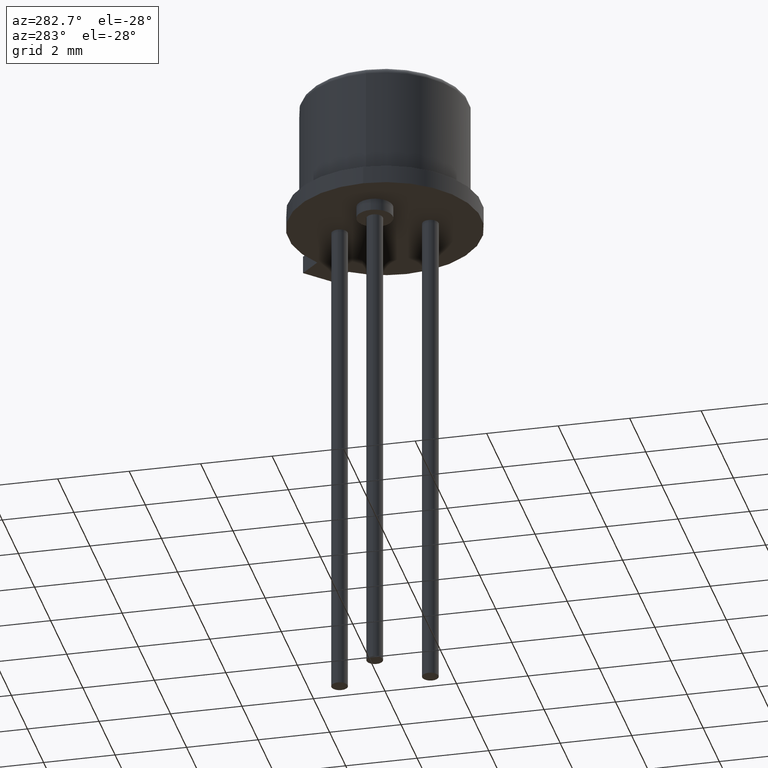
[diagram: clean part render]
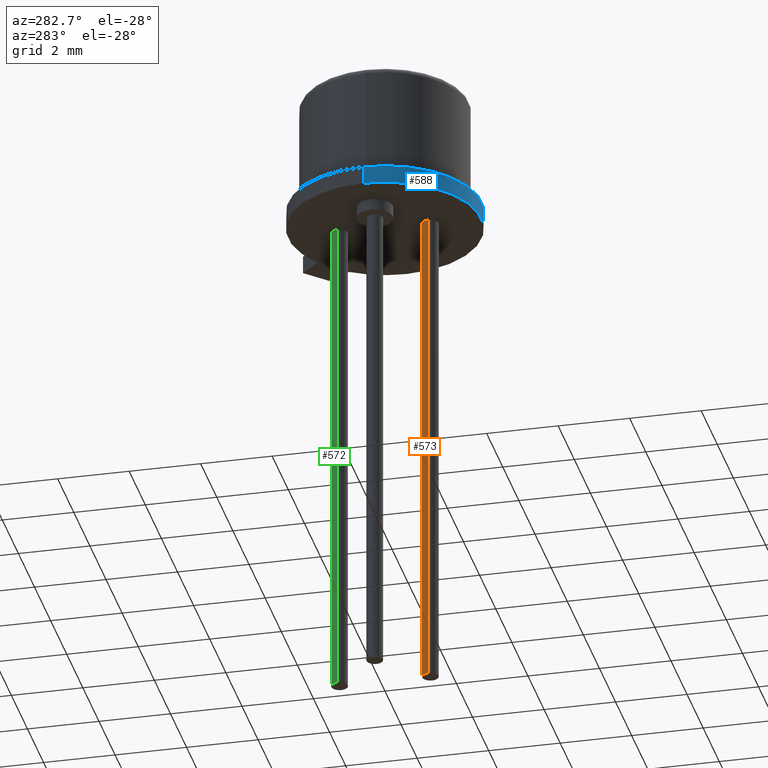
[diagram: same view with three faces highlighted in distinct colors, each labeled with its STEP entity id]
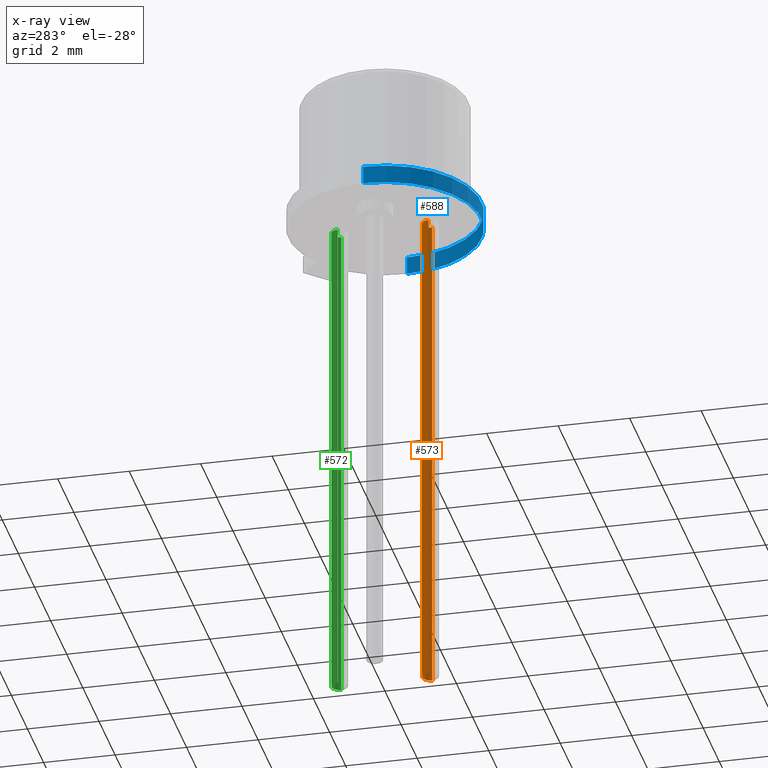
[diagram: x-ray of the same camera — body ghosted, the three highlighted faces saturated]
A machine part, auxiliary view with three faces highlighted in distinct colors.
The next image is the same camera in x-ray (body ghosted, the three faces saturated) — at least one of them is partly hidden behind the body in this view.
Their STEP definitions:

[orange] entity #573 — the highlighted cylindrical surface (edge-blend (fillet) strip) has radius 0.2286 mm, axis along (-0, -0, 1).
#12 = ORIENTED_EDGE ( 'NONE', *, *, #648, .T. ) ;
#13 = ORIENTED_EDGE ( 'NONE', *, *, #647, .F. ) ;
#17 = ORIENTED_EDGE ( 'NONE', *, *, #646, .F. ) ;
#20 = ORIENTED_EDGE ( 'NONE', *, *, #649, .T. ) ;
#165 = VERTEX_POINT ( 'NONE', #1519 ) ;
#166 = VERTEX_POINT ( 'NONE', #1520 ) ;
#171 = VERTEX_POINT ( 'NONE', #1525 ) ;
#172 = VERTEX_POINT ( 'NONE', #1526 ) ;
#215 = EDGE_LOOP ( 'NONE', ( #13, #20, #12, #17 ) ) ;
#456 = CARTESIAN_POINT ( 'NONE',  ( 0.0000000000000000000, -0.05000000000000000300, -0.5510000000000000500 ) ) ;
#457 = DIRECTION ( 'NONE',  ( -0.0000000000000000000, -0.0000000000000000000, 1.000000000000000000 ) ) ;
#466 = DIRECTION ( 'NONE',  ( 1.000000000000000000, 0.0000000000000000000, 0.0000000000000000000 ) ) ;
#515 = DIRECTION ( 'NONE',  ( -0.0000000000000000000, -0.0000000000000000000, -1.000000000000000000 ) ) ;
#529 = DIRECTION ( 'NONE',  ( 1.000000000000000000, 0.0000000000000000000, 0.0000000000000000000 ) ) ;
#573 = ADVANCED_FACE ( 'NONE', ( #771 ), #780, .T. ) ;
#646 = EDGE_CURVE ( 'NONE', #166, #172, #1325, .T. ) ;
#647 = EDGE_CURVE ( 'NONE', #165, #166, #1326, .T. ) ;
#648 = EDGE_CURVE ( 'NONE', #171, #172, #1328, .T. ) ;
#649 = EDGE_CURVE ( 'NONE', #165, #171, #1323, .T. ) ;
#771 = FACE_OUTER_BOUND ( 'NONE', #215, .T. ) ;
#780 = CYLINDRICAL_SURFACE ( 'NONE', #858, 0.008999999999999997600 ) ;
#858 = AXIS2_PLACEMENT_3D ( 'NONE', #456, #457, #466 ) ;
#1207 = DIRECTION ( 'NONE',  ( -0.0000000000000000000, -0.0000000000000000000, 1.000000000000000000 ) ) ;
#1211 = CARTESIAN_POINT ( 'NONE',  ( 0.008999999999999997600, -0.05000000000000000300, -0.5510000000000000500 ) ) ;
#1215 = DIRECTION ( 'NONE',  ( -0.0000000000000000000, -0.0000000000000000000, 1.000000000000000000 ) ) ;
#1216 = CARTESIAN_POINT ( 'NONE',  ( 0.0000000000000000000, -0.05000000000000000300, -0.5510000000000000500 ) ) ;
#1217 = DIRECTION ( 'NONE',  ( 0.0000000000000000000, 0.0000000000000000000, -1.000000000000000000 ) ) ;
#1218 = DIRECTION ( 'NONE',  ( -1.000000000000000000, 0.0000000000000000000, 0.0000000000000000000 ) ) ;
#1219 = CARTESIAN_POINT ( 'NONE',  ( -0.008999999999999997600, -0.05000000000000000300, -0.5510000000000000500 ) ) ;
#1220 = CARTESIAN_POINT ( 'NONE',  ( 0.0000000000000000000, -0.05000000000000000300, 0.0000000000000000000 ) ) ;
#1323 = LINE ( 'NONE', #1219, #1331 ) ;
#1325 = LINE ( 'NONE', #1211, #1327 ) ;
#1326 = CIRCLE ( 'NONE', #1355, 0.008999999999999997600 ) ;
#1327 = VECTOR ( 'NONE', #1207, 39.37007874015748100 ) ;
#1328 = CIRCLE ( 'NONE', #1356, 0.008999999999999997600 ) ;
#1331 = VECTOR ( 'NONE', #1215, 39.37007874015748100 ) ;
#1355 = AXIS2_PLACEMENT_3D ( 'NONE', #1216, #1217, #1218 ) ;
#1356 = AXIS2_PLACEMENT_3D ( 'NONE', #1220, #515, #529 ) ;
#1519 = CARTESIAN_POINT ( 'NONE',  ( -0.008999999999999997600, -0.05000000000000000300, -0.5510000000000000500 ) ) ;
#1520 = CARTESIAN_POINT ( 'NONE',  ( 0.008999999999999997600, -0.05000000000000000300, -0.5510000000000000500 ) ) ;
#1525 = CARTESIAN_POINT ( 'NONE',  ( -0.008999999999999997600, -0.05000000000000000300, 0.0000000000000000000 ) ) ;
#1526 = CARTESIAN_POINT ( 'NONE',  ( 0.008999999999999997600, -0.05000000000000000300, 0.0000000000000000000 ) ) ;

[blue] entity #588 — the highlighted cylindrical surface (partial cylindrical patch) has radius 2.7051 mm, axis along (-0, -0, -1).
#44 = ORIENTED_EDGE ( 'NONE', *, *, #536, .F. ) ;
#45 = ORIENTED_EDGE ( 'NONE', *, *, #539, .F. ) ;
#46 = ORIENTED_EDGE ( 'NONE', *, *, #540, .T. ) ;
#47 = ORIENTED_EDGE ( 'NONE', *, *, #541, .T. ) ;
#179 = VERTEX_POINT ( 'NONE', #1533 ) ;
#185 = VERTEX_POINT ( 'NONE', #1539 ) ;
#191 = VERTEX_POINT ( 'NONE', #1545 ) ;
#194 = VERTEX_POINT ( 'NONE', #1548 ) ;
#221 = EDGE_LOOP ( 'NONE', ( #44, #45, #46, #47 ) ) ;
#268 = DIRECTION ( 'NONE',  ( -0.0000000000000000000, -0.0000000000000000000, -1.000000000000000000 ) ) ;
#269 = CARTESIAN_POINT ( 'NONE',  ( 0.1065000000000000100, 1.304248841091931400E-017, 0.01996900000000000100 ) ) ;
#274 = DIRECTION ( 'NONE',  ( -0.0000000000000000000, -0.0000000000000000000, -1.000000000000000000 ) ) ;
#278 = CARTESIAN_POINT ( 'NONE',  ( -0.1065000000000000100, 0.0000000000000000000, 0.01996900000000000100 ) ) ;
#280 = CARTESIAN_POINT ( 'NONE',  ( 0.0000000000000000000, 0.0000000000000000000, 0.01996900000000000100 ) ) ;
#281 = DIRECTION ( 'NONE',  ( 0.0000000000000000000, 0.0000000000000000000, 1.000000000000000000 ) ) ;
#282 = DIRECTION ( 'NONE',  ( 1.000000000000000000, 0.0000000000000000000, 0.0000000000000000000 ) ) ;
#284 = CARTESIAN_POINT ( 'NONE',  ( 0.0000000000000000000, 0.0000000000000000000, 0.0000000000000000000 ) ) ;
#285 = DIRECTION ( 'NONE',  ( 0.0000000000000000000, 0.0000000000000000000, 1.000000000000000000 ) ) ;
#286 = DIRECTION ( 'NONE',  ( 1.000000000000000000, 0.0000000000000000000, 0.0000000000000000000 ) ) ;
#536 = EDGE_CURVE ( 'NONE', #185, #191, #1428, .T. ) ;
#539 = EDGE_CURVE ( 'NONE', #179, #185, #1430, .T. ) ;
#540 = EDGE_CURVE ( 'NONE', #179, #194, #1435, .T. ) ;
#541 = EDGE_CURVE ( 'NONE', #194, #191, #1433, .T. ) ;
#588 = ADVANCED_FACE ( 'NONE', ( #1247 ), #1256, .T. ) ;
#671 = AXIS2_PLACEMENT_3D ( 'NONE', #280, #281, #282 ) ;
#672 = AXIS2_PLACEMENT_3D ( 'NONE', #284, #285, #286 ) ;
#921 = AXIS2_PLACEMENT_3D ( 'NONE', #1052, #1053, #1062 ) ;
#1052 = CARTESIAN_POINT ( 'NONE',  ( 0.0000000000000000000, 0.0000000000000000000, 0.01996900000000000100 ) ) ;
#1053 = DIRECTION ( 'NONE',  ( -0.0000000000000000000, -0.0000000000000000000, -1.000000000000000000 ) ) ;
#1062 = DIRECTION ( 'NONE',  ( -1.000000000000000000, 0.0000000000000000000, 0.0000000000000000000 ) ) ;
#1247 = FACE_OUTER_BOUND ( 'NONE', #221, .T. ) ;
#1256 = CYLINDRICAL_SURFACE ( 'NONE', #921, 0.1065000000000000100 ) ;
#1428 = LINE ( 'NONE', #269, #1431 ) ;
#1430 = CIRCLE ( 'NONE', #671, 0.1065000000000000100 ) ;
#1431 = VECTOR ( 'NONE', #268, 39.37007874015748100 ) ;
#1433 = CIRCLE ( 'NONE', #672, 0.1065000000000000100 ) ;
#1435 = LINE ( 'NONE', #278, #1437 ) ;
#1437 = VECTOR ( 'NONE', #274, 39.37007874015748100 ) ;
#1533 = CARTESIAN_POINT ( 'NONE',  ( -0.1065000000000000100, 0.0000000000000000000, 0.01996900000000000100 ) ) ;
#1539 = CARTESIAN_POINT ( 'NONE',  ( 0.1065000000000000100, 1.304248841091931400E-017, 0.01996900000000000100 ) ) ;
#1545 = CARTESIAN_POINT ( 'NONE',  ( 0.1065000000000000100, 1.304248841091931400E-017, 0.0000000000000000000 ) ) ;
#1548 = CARTESIAN_POINT ( 'NONE',  ( -0.1065000000000000100, 0.0000000000000000000, 0.0000000000000000000 ) ) ;

[green] entity #572 — the highlighted cylindrical surface (edge-blend (fillet) strip) has radius 0.2286 mm, axis along (-0, -0, 1).
#14 = ORIENTED_EDGE ( 'NONE', *, *, #645, .T. ) ;
#18 = ORIENTED_EDGE ( 'NONE', *, *, #660, .F. ) ;
#21 = ORIENTED_EDGE ( 'NONE', *, *, #643, .F. ) ;
#22 = ORIENTED_EDGE ( 'NONE', *, *, #644, .T. ) ;
#161 = VERTEX_POINT ( 'NONE', #1515 ) ;
#162 = VERTEX_POINT ( 'NONE', #1516 ) ;
#167 = VERTEX_POINT ( 'NONE', #1521 ) ;
#168 = VERTEX_POINT ( 'NONE', #1522 ) ;
#213 = EDGE_LOOP ( 'NONE', ( #21, #22, #14, #18 ) ) ;
#433 = DIRECTION ( 'NONE',  ( -0.0000000000000000000, -0.0000000000000000000, 1.000000000000000000 ) ) ;
#446 = CARTESIAN_POINT ( 'NONE',  ( 1.024442997624098700E-016, 0.04999999999999998200, -0.5510000000000000500 ) ) ;
#455 = DIRECTION ( 'NONE',  ( 1.000000000000000000, 0.0000000000000000000, 0.0000000000000000000 ) ) ;
#572 = ADVANCED_FACE ( 'NONE', ( #765 ), #774, .T. ) ;
#643 = EDGE_CURVE ( 'NONE', #161, #162, #1320, .T. ) ;
#644 = EDGE_CURVE ( 'NONE', #161, #167, #1322, .T. ) ;
#645 = EDGE_CURVE ( 'NONE', #167, #168, #1317, .T. ) ;
#660 = EDGE_CURVE ( 'NONE', #162, #168, #1342, .T. ) ;
#765 = FACE_OUTER_BOUND ( 'NONE', #213, .T. ) ;
#774 = CYLINDRICAL_SURFACE ( 'NONE', #853, 0.008999999999999997600 ) ;
#853 = AXIS2_PLACEMENT_3D ( 'NONE', #446, #433, #455 ) ;
#1202 = CARTESIAN_POINT ( 'NONE',  ( -0.008999999999999895200, 0.04999999999999998200, -0.5510000000000000500 ) ) ;
#1203 = DIRECTION ( 'NONE',  ( -0.0000000000000000000, -0.0000000000000000000, 1.000000000000000000 ) ) ;
#1208 = CARTESIAN_POINT ( 'NONE',  ( 1.024442997624098700E-016, 0.04999999999999998200, -0.5510000000000000500 ) ) ;
#1209 = DIRECTION ( 'NONE',  ( -0.0000000000000000000, -0.0000000000000000000, -1.000000000000000000 ) ) ;
#1210 = DIRECTION ( 'NONE',  ( 1.000000000000000000, 0.0000000000000000000, 0.0000000000000000000 ) ) ;
#1212 = CARTESIAN_POINT ( 'NONE',  ( 1.024442997624098700E-016, 0.04999999999999998200, 0.0000000000000000000 ) ) ;
#1213 = DIRECTION ( 'NONE',  ( -0.0000000000000000000, -0.0000000000000000000, -1.000000000000000000 ) ) ;
#1214 = DIRECTION ( 'NONE',  ( 1.000000000000000000, 0.0000000000000000000, 0.0000000000000000000 ) ) ;
#1317 = CIRCLE ( 'NONE', #1354, 0.008999999999999997600 ) ;
#1320 = CIRCLE ( 'NONE', #1353, 0.008999999999999997600 ) ;
#1322 = LINE ( 'NONE', #1202, #1324 ) ;
#1324 = VECTOR ( 'NONE', #1203, 39.37007874015748100 ) ;
#1342 = LINE ( 'NONE', #1396, #1343 ) ;
#1343 = VECTOR ( 'NONE', #1397, 39.37007874015748100 ) ;
#1353 = AXIS2_PLACEMENT_3D ( 'NONE', #1208, #1209, #1210 ) ;
#1354 = AXIS2_PLACEMENT_3D ( 'NONE', #1212, #1213, #1214 ) ;
#1396 = CARTESIAN_POINT ( 'NONE',  ( 0.009000000000000099900, 0.04999999999999998200, -0.5510000000000000500 ) ) ;
#1397 = DIRECTION ( 'NONE',  ( -0.0000000000000000000, -0.0000000000000000000, 1.000000000000000000 ) ) ;
#1515 = CARTESIAN_POINT ( 'NONE',  ( -0.008999999999999895200, 0.04999999999999998200, -0.5510000000000000500 ) ) ;
#1516 = CARTESIAN_POINT ( 'NONE',  ( 0.009000000000000099900, 0.04999999999999998200, -0.5510000000000000500 ) ) ;
#1521 = CARTESIAN_POINT ( 'NONE',  ( -0.008999999999999895200, 0.04999999999999998200, 0.0000000000000000000 ) ) ;
#1522 = CARTESIAN_POINT ( 'NONE',  ( 0.009000000000000099900, 0.04999999999999998200, 0.0000000000000000000 ) ) ;